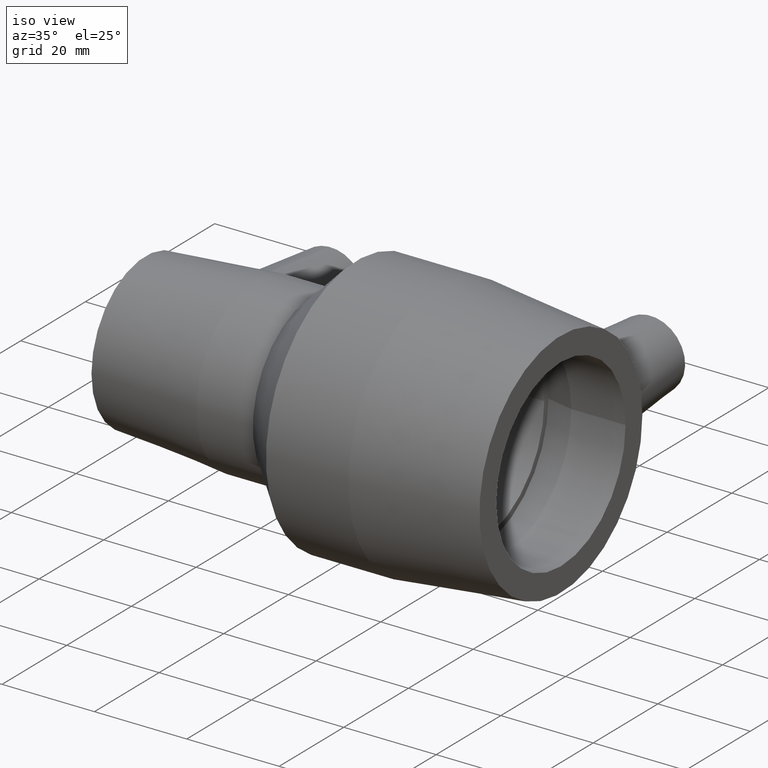
[diagram: clean part render]
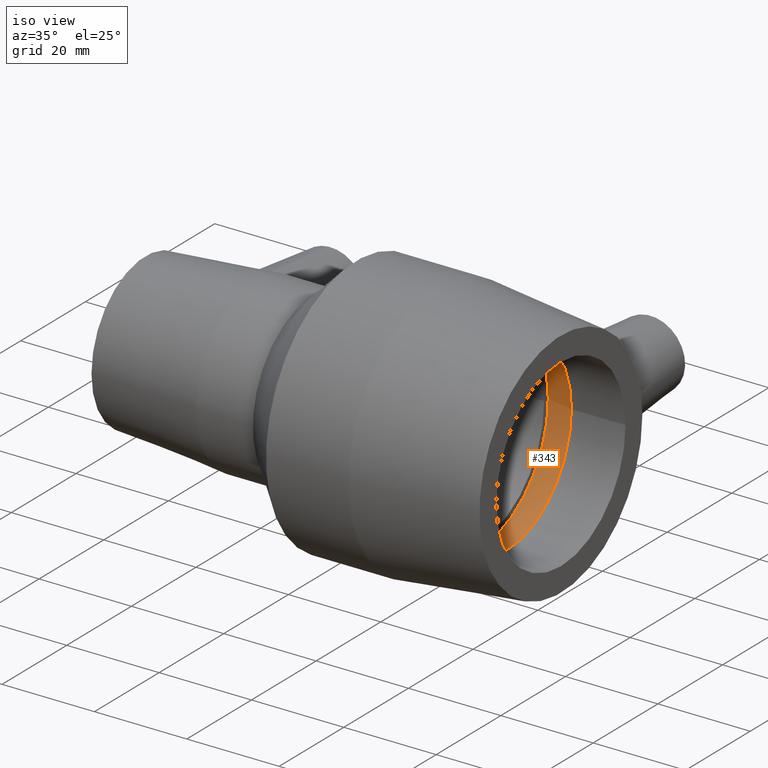
[diagram: same view with one face highlighted and labeled with its STEP entity id]
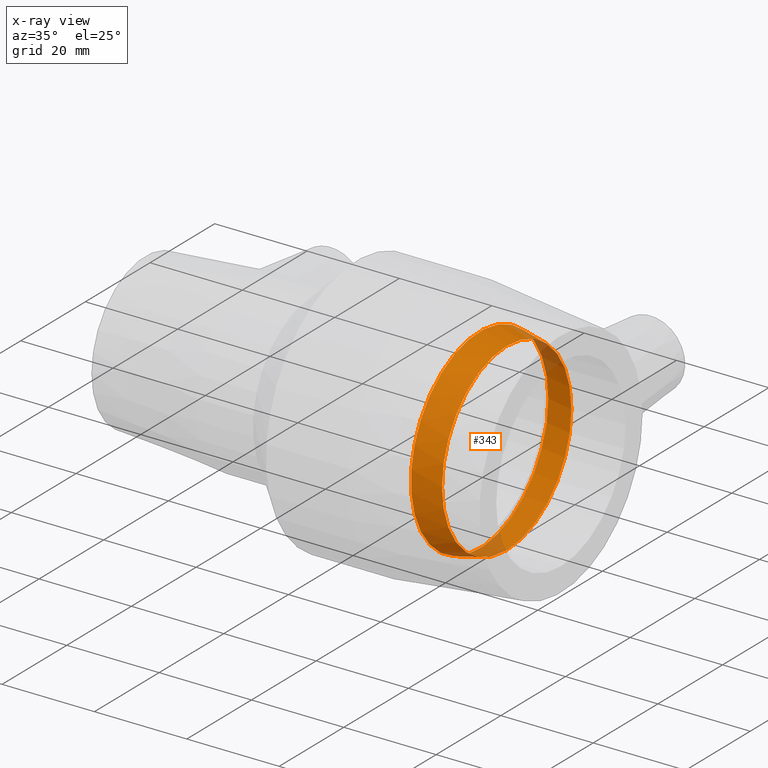
[diagram: x-ray of the same camera — body ghosted, the highlighted face saturated]
A machine part, iso view. The second image highlights one B-rep face of the part: STEP entity #343.
The next image is the same camera in x-ray: the body ghosted, the highlighted face saturated — about 8% of this face is hidden behind the body in this view.
In plain terms, the highlighted conical surface has half-angle 12 deg.
Its self-contained STEP definition (entity closure, byte-faithful):
#21=CONICAL_SURFACE('',#393,20.6234992475654,12.);
#42=FACE_BOUND('',#134,.T.);
#85=FACE_OUTER_BOUND('',#133,.T.);
#133=EDGE_LOOP('',(#286));
#134=EDGE_LOOP('',(#287));
#176=CIRCLE('',#392,20.);
#177=CIRCLE('',#394,21.2469984951308);
#207=VERTEX_POINT('',#665);
#208=VERTEX_POINT('',#668);
#238=EDGE_CURVE('',#207,#207,#176,.T.);
#239=EDGE_CURVE('',#208,#208,#177,.T.);
#286=ORIENTED_EDGE('',*,*,#239,.F.);
#287=ORIENTED_EDGE('',*,*,#238,.T.);
#343=ADVANCED_FACE('',(#85,#42),#21,.F.);
#392=AXIS2_PLACEMENT_3D('',#666,#488,#489);
#393=AXIS2_PLACEMENT_3D('',#667,#490,#491);
#394=AXIS2_PLACEMENT_3D('',#669,#492,#493);
#488=DIRECTION('center_axis',(1.,1.83697019872103E-16,0.));
#489=DIRECTION('ref_axis',(0.,0.,-1.));
#490=DIRECTION('center_axis',(-1.,-1.83697019872103E-16,0.));
#491=DIRECTION('ref_axis',(-1.27220423054671E-16,1.,0.));
#492=DIRECTION('center_axis',(1.,1.83697019872103E-16,0.));
#493=DIRECTION('ref_axis',(0.,0.,-1.));
#665=CARTESIAN_POINT('',(33.2666666666666,20.,0.));
#666=CARTESIAN_POINT('Origin',(33.2666666666666,1.43773534219899E-14,0.));
#667=CARTESIAN_POINT('Origin',(30.3333333333333,1.38385088303651E-14,0.));
#668=CARTESIAN_POINT('',(27.4,21.2469984951308,0.));
#669=CARTESIAN_POINT('Origin',(27.4,1.32996642387403E-14,0.));